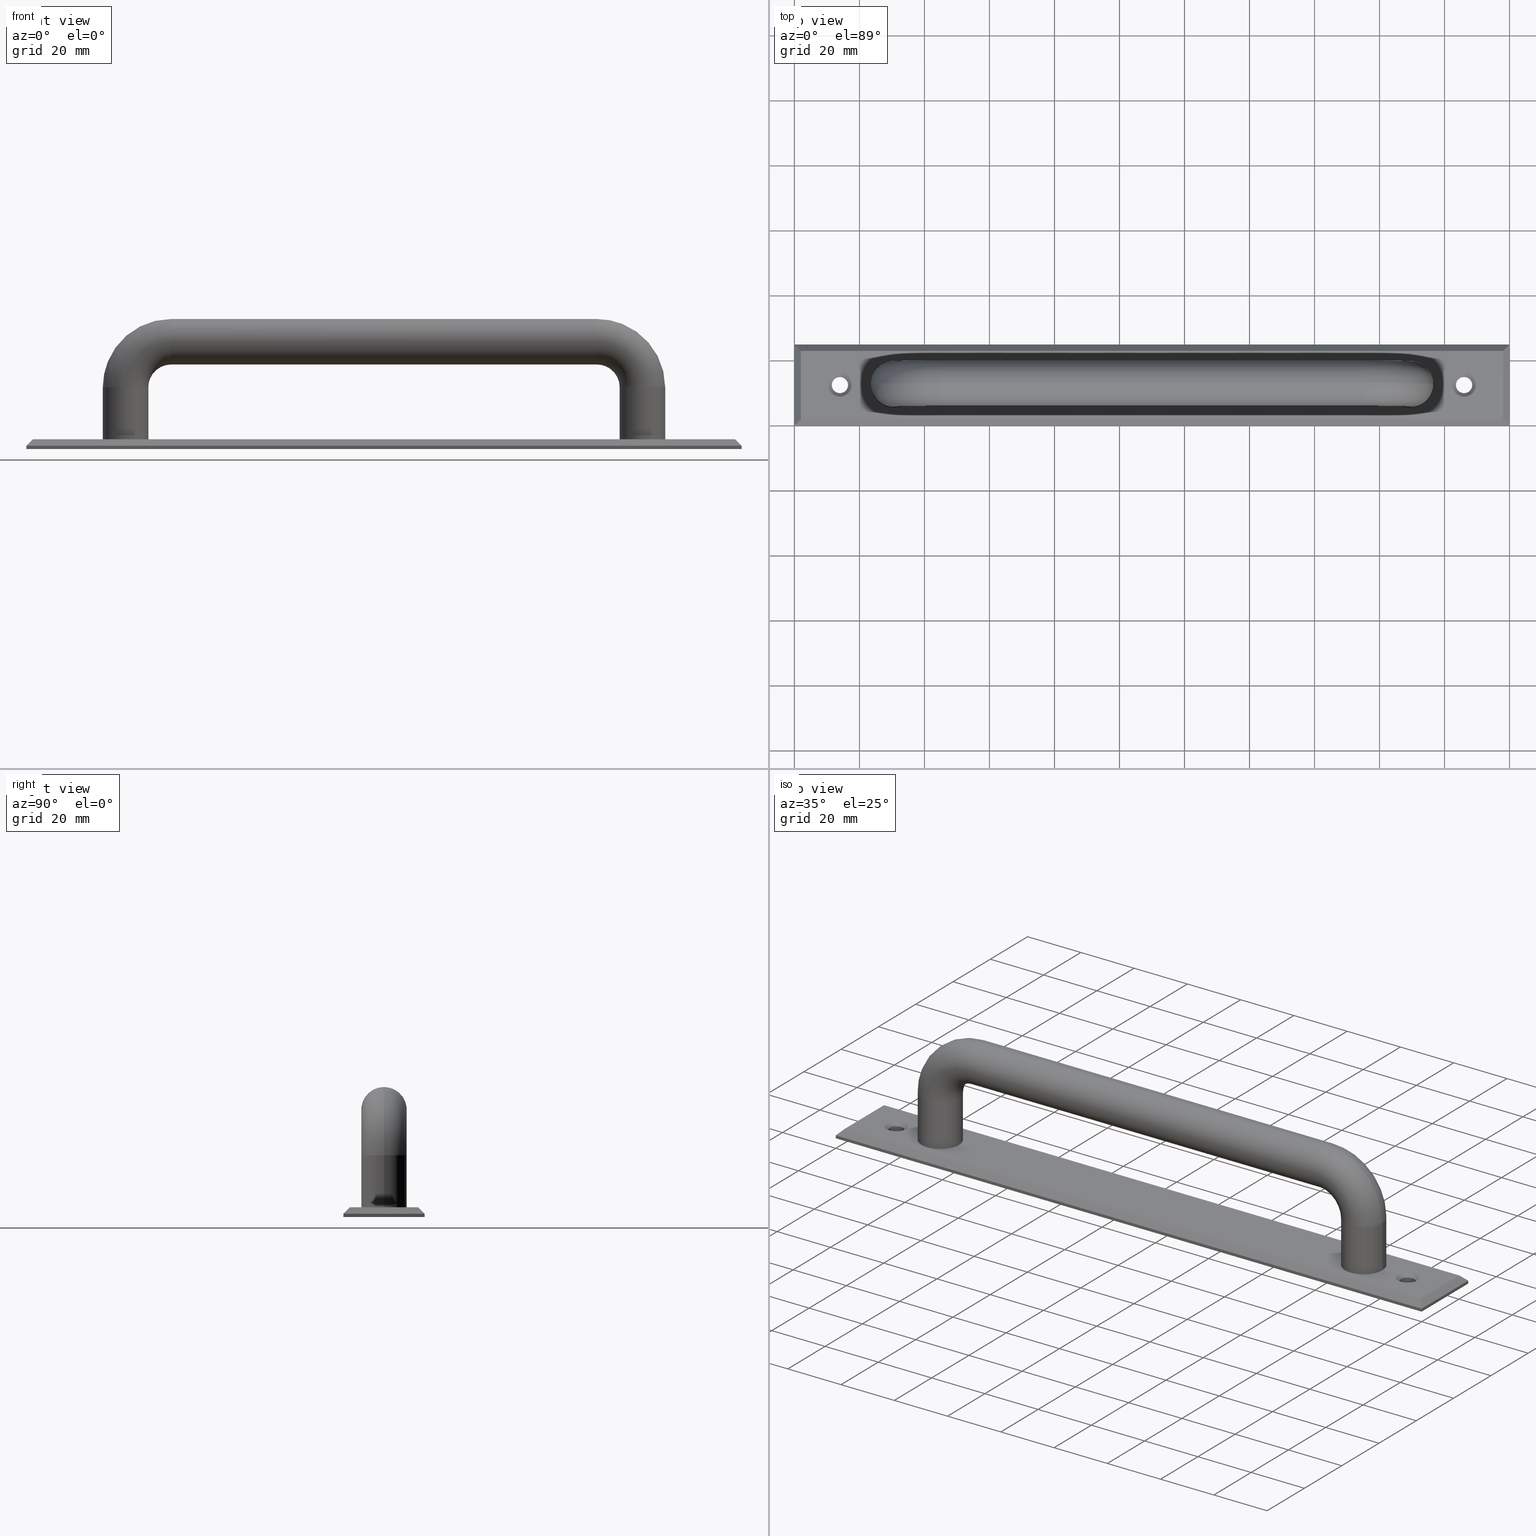
[diagram: canonical four-view strip — front | top / right | iso, engineering-drawing reading convention]
A machine part, canonical four-view strip (front | top / right | iso — engineering-drawing reading convention). The complete STEP part file that produces these views, byte-faithful:
ISO-10303-21;
HEADER;
/* Generated by software containing ST-Developer
 * from STEP Tools, Inc. (www.steptools.com) 
 */

FILE_DESCRIPTION(
/* description */ (''),
/* implementation_level */ '2;1');

FILE_NAME(
/* name */ '\\\\SYNOLOGYNAS\\web\\db2\\A-AL1-3\\\X2\B3C4BA74\X0\\\DR_A
-AL1-3.stp',
/* time_stamp */ '2024-07-03T17:14:41+09:00',
/* author */ ('user'),
/* organization */ (''),
/* preprocessor_version */ 'ST-DEVELOPER v15.6',
/* originating_system */ 'Autodesk Inventor 2015',
/* authorisation */ '');

FILE_SCHEMA (('AUTOMOTIVE_DESIGN { 1 0 10303 214 3 1 1 }'));
ENDSEC;

DATA;
#10=MECHANICAL_DESIGN_GEOMETRIC_PRESENTATION_REPRESENTATION('',(#13),#489);
#11=SHAPE_REPRESENTATION_RELATIONSHIP('SRR','None',#498,#12);
#12=ADVANCED_BREP_SHAPE_REPRESENTATION($,(#14),#488);
#13=STYLED_ITEM('',(#507),#14);
#14=MANIFOLD_SOLID_BREP('\X2\C194B9ACB4DC\X0\1',#293);
#15=CONICAL_SURFACE('',#315,3.05,45.);
#16=CONICAL_SURFACE('',#319,3.05,45.);
#17=LINE('',#431,#37);
#18=LINE('',#433,#38);
#19=LINE('',#435,#39);
#20=LINE('',#436,#40);
#21=LINE('',#439,#41);
#22=LINE('',#441,#42);
#23=LINE('',#442,#43);
#24=LINE('',#449,#44);
#25=LINE('',#450,#45);
#26=LINE('',#453,#46);
#27=LINE('',#454,#47);
#28=LINE('',#457,#48);
#29=LINE('',#459,#49);
#30=LINE('',#460,#50);
#31=LINE('',#463,#51);
#32=LINE('',#465,#52);
#33=LINE('',#466,#53);
#34=LINE('',#468,#54);
#35=LINE('',#482,#55);
#36=LINE('',#484,#56);
#37=VECTOR('',#352,3.46410161513776);
#38=VECTOR('',#353,21.);
#39=VECTOR('',#354,3.46410161513774);
#40=VECTOR('',#355,25.);
#41=VECTOR('',#358,216.);
#42=VECTOR('',#359,21.);
#43=VECTOR('',#360,216.);
#44=VECTOR('',#367,220.);
#45=VECTOR('',#368,3.46410161513775);
#46=VECTOR('',#371,3.46410161513775);
#47=VECTOR('',#372,25.);
#48=VECTOR('',#375,1.);
#49=VECTOR('',#376,25.);
#50=VECTOR('',#377,1.);
#51=VECTOR('',#380,1.);
#52=VECTOR('',#381,25.);
#53=VECTOR('',#382,1.);
#54=VECTOR('',#385,220.);
#55=VECTOR('',#404,220.);
#56=VECTOR('',#407,220.);
#57=PLANE('',#306);
#58=PLANE('',#307);
#59=PLANE('',#310);
#60=PLANE('',#311);
#61=PLANE('',#312);
#62=PLANE('',#313);
#63=PLANE('',#314);
#64=PLANE('',#323);
#65=PLANE('',#324);
#66=PLANE('',#325);
#67=TOROIDAL_SURFACE('',#301,14.,7.);
#68=TOROIDAL_SURFACE('',#305,14.,7.);
#69=FACE_BOUND('',#104,.T.);
#70=FACE_BOUND('',#106,.T.);
#71=FACE_BOUND('',#108,.T.);
#72=FACE_BOUND('',#110,.T.);
#73=FACE_BOUND('',#112,.T.);
#74=FACE_BOUND('',#115,.T.);
#75=FACE_BOUND('',#116,.T.);
#76=FACE_BOUND('',#117,.T.);
#77=FACE_BOUND('',#118,.T.);
#78=FACE_BOUND('',#125,.T.);
#79=FACE_BOUND('',#127,.T.);
#80=FACE_BOUND('',#129,.T.);
#81=FACE_BOUND('',#131,.T.);
#82=FACE_BOUND('',#135,.T.);
#83=FACE_BOUND('',#136,.T.);
#84=FACE_OUTER_BOUND('',#103,.T.);
#85=FACE_OUTER_BOUND('',#105,.T.);
#86=FACE_OUTER_BOUND('',#107,.T.);
#87=FACE_OUTER_BOUND('',#109,.T.);
#88=FACE_OUTER_BOUND('',#111,.T.);
#89=FACE_OUTER_BOUND('',#113,.T.);
#90=FACE_OUTER_BOUND('',#114,.T.);
#91=FACE_OUTER_BOUND('',#119,.T.);
#92=FACE_OUTER_BOUND('',#120,.T.);
#93=FACE_OUTER_BOUND('',#121,.T.);
#94=FACE_OUTER_BOUND('',#122,.T.);
#95=FACE_OUTER_BOUND('',#123,.T.);
#96=FACE_OUTER_BOUND('',#124,.T.);
#97=FACE_OUTER_BOUND('',#126,.T.);
#98=FACE_OUTER_BOUND('',#128,.T.);
#99=FACE_OUTER_BOUND('',#130,.T.);
#100=FACE_OUTER_BOUND('',#132,.T.);
#101=FACE_OUTER_BOUND('',#133,.T.);
#102=FACE_OUTER_BOUND('',#134,.T.);
#103=EDGE_LOOP('',(#205));
#104=EDGE_LOOP('',(#206));
#105=EDGE_LOOP('',(#207));
#106=EDGE_LOOP('',(#208));
#107=EDGE_LOOP('',(#209));
#108=EDGE_LOOP('',(#210));
#109=EDGE_LOOP('',(#211));
#110=EDGE_LOOP('',(#212));
#111=EDGE_LOOP('',(#213));
#112=EDGE_LOOP('',(#214));
#113=EDGE_LOOP('',(#215,#216,#217,#218));
#114=EDGE_LOOP('',(#219,#220,#221,#222));
#115=EDGE_LOOP('',(#223));
#116=EDGE_LOOP('',(#224));
#117=EDGE_LOOP('',(#225));
#118=EDGE_LOOP('',(#226));
#119=EDGE_LOOP('',(#227,#228,#229,#230));
#120=EDGE_LOOP('',(#231,#232,#233,#234));
#121=EDGE_LOOP('',(#235,#236,#237,#238));
#122=EDGE_LOOP('',(#239,#240,#241,#242));
#123=EDGE_LOOP('',(#243,#244,#245,#246));
#124=EDGE_LOOP('',(#247));
#125=EDGE_LOOP('',(#248));
#126=EDGE_LOOP('',(#249));
#127=EDGE_LOOP('',(#250));
#128=EDGE_LOOP('',(#251));
#129=EDGE_LOOP('',(#252));
#130=EDGE_LOOP('',(#253));
#131=EDGE_LOOP('',(#254));
#132=EDGE_LOOP('',(#255,#256,#257,#258));
#133=EDGE_LOOP('',(#259,#260,#261,#262));
#134=EDGE_LOOP('',(#263,#264,#265,#266));
#135=EDGE_LOOP('',(#267));
#136=EDGE_LOOP('',(#268));
#137=CIRCLE('',#296,7.);
#138=CIRCLE('',#297,7.);
#139=CIRCLE('',#299,7.);
#140=CIRCLE('',#300,7.);
#141=CIRCLE('',#302,7.);
#142=CIRCLE('',#304,7.);
#143=CIRCLE('',#308,3.6);
#144=CIRCLE('',#309,3.6);
#145=CIRCLE('',#316,2.5);
#146=CIRCLE('',#318,2.5);
#147=CIRCLE('',#320,2.5);
#148=CIRCLE('',#322,2.5);
#149=VERTEX_POINT('',#412);
#150=VERTEX_POINT('',#414);
#151=VERTEX_POINT('',#417);
#152=VERTEX_POINT('',#419);
#153=VERTEX_POINT('',#422);
#154=VERTEX_POINT('',#425);
#155=VERTEX_POINT('',#429);
#156=VERTEX_POINT('',#430);
#157=VERTEX_POINT('',#432);
#158=VERTEX_POINT('',#434);
#159=VERTEX_POINT('',#438);
#160=VERTEX_POINT('',#440);
#161=VERTEX_POINT('',#443);
#162=VERTEX_POINT('',#445);
#163=VERTEX_POINT('',#448);
#164=VERTEX_POINT('',#452);
#165=VERTEX_POINT('',#456);
#166=VERTEX_POINT('',#458);
#167=VERTEX_POINT('',#462);
#168=VERTEX_POINT('',#464);
#169=VERTEX_POINT('',#470);
#170=VERTEX_POINT('',#473);
#171=VERTEX_POINT('',#476);
#172=VERTEX_POINT('',#479);
#173=EDGE_CURVE('',#149,#149,#137,.T.);
#174=EDGE_CURVE('',#150,#150,#138,.T.);
#175=EDGE_CURVE('',#151,#151,#139,.T.);
#176=EDGE_CURVE('',#152,#152,#140,.T.);
#177=EDGE_CURVE('',#153,#153,#141,.T.);
#178=EDGE_CURVE('',#154,#154,#142,.T.);
#179=EDGE_CURVE('',#155,#156,#17,.T.);
#180=EDGE_CURVE('',#156,#157,#18,.T.);
#181=EDGE_CURVE('',#157,#158,#19,.T.);
#182=EDGE_CURVE('',#158,#155,#20,.T.);
#183=EDGE_CURVE('',#159,#156,#21,.T.);
#184=EDGE_CURVE('',#160,#159,#22,.T.);
#185=EDGE_CURVE('',#157,#160,#23,.T.);
#186=EDGE_CURVE('',#161,#161,#143,.T.);
#187=EDGE_CURVE('',#162,#162,#144,.T.);
#188=EDGE_CURVE('',#155,#163,#24,.T.);
#189=EDGE_CURVE('',#159,#163,#25,.T.);
#190=EDGE_CURVE('',#164,#160,#26,.T.);
#191=EDGE_CURVE('',#163,#164,#27,.T.);
#192=EDGE_CURVE('',#165,#163,#28,.T.);
#193=EDGE_CURVE('',#165,#166,#29,.T.);
#194=EDGE_CURVE('',#166,#164,#30,.T.);
#195=EDGE_CURVE('',#167,#158,#31,.T.);
#196=EDGE_CURVE('',#167,#168,#32,.T.);
#197=EDGE_CURVE('',#168,#155,#33,.T.);
#198=EDGE_CURVE('',#164,#158,#34,.T.);
#199=EDGE_CURVE('',#169,#169,#145,.T.);
#200=EDGE_CURVE('',#170,#170,#146,.T.);
#201=EDGE_CURVE('',#171,#171,#147,.T.);
#202=EDGE_CURVE('',#172,#172,#148,.T.);
#203=EDGE_CURVE('',#166,#167,#35,.T.);
#204=EDGE_CURVE('',#168,#165,#36,.T.);
#205=ORIENTED_EDGE('',*,*,#173,.F.);
#206=ORIENTED_EDGE('',*,*,#174,.F.);
#207=ORIENTED_EDGE('',*,*,#175,.T.);
#208=ORIENTED_EDGE('',*,*,#176,.F.);
#209=ORIENTED_EDGE('',*,*,#173,.T.);
#210=ORIENTED_EDGE('',*,*,#177,.F.);
#211=ORIENTED_EDGE('',*,*,#177,.T.);
#212=ORIENTED_EDGE('',*,*,#178,.F.);
#213=ORIENTED_EDGE('',*,*,#178,.T.);
#214=ORIENTED_EDGE('',*,*,#175,.F.);
#215=ORIENTED_EDGE('',*,*,#179,.T.);
#216=ORIENTED_EDGE('',*,*,#180,.T.);
#217=ORIENTED_EDGE('',*,*,#181,.T.);
#218=ORIENTED_EDGE('',*,*,#182,.T.);
#219=ORIENTED_EDGE('',*,*,#180,.F.);
#220=ORIENTED_EDGE('',*,*,#183,.F.);
#221=ORIENTED_EDGE('',*,*,#184,.F.);
#222=ORIENTED_EDGE('',*,*,#185,.F.);
#223=ORIENTED_EDGE('',*,*,#174,.T.);
#224=ORIENTED_EDGE('',*,*,#176,.T.);
#225=ORIENTED_EDGE('',*,*,#186,.T.);
#226=ORIENTED_EDGE('',*,*,#187,.T.);
#227=ORIENTED_EDGE('',*,*,#179,.F.);
#228=ORIENTED_EDGE('',*,*,#188,.T.);
#229=ORIENTED_EDGE('',*,*,#189,.F.);
#230=ORIENTED_EDGE('',*,*,#183,.T.);
#231=ORIENTED_EDGE('',*,*,#190,.T.);
#232=ORIENTED_EDGE('',*,*,#184,.T.);
#233=ORIENTED_EDGE('',*,*,#189,.T.);
#234=ORIENTED_EDGE('',*,*,#191,.T.);
#235=ORIENTED_EDGE('',*,*,#191,.F.);
#236=ORIENTED_EDGE('',*,*,#192,.F.);
#237=ORIENTED_EDGE('',*,*,#193,.T.);
#238=ORIENTED_EDGE('',*,*,#194,.T.);
#239=ORIENTED_EDGE('',*,*,#182,.F.);
#240=ORIENTED_EDGE('',*,*,#195,.F.);
#241=ORIENTED_EDGE('',*,*,#196,.T.);
#242=ORIENTED_EDGE('',*,*,#197,.T.);
#243=ORIENTED_EDGE('',*,*,#181,.F.);
#244=ORIENTED_EDGE('',*,*,#185,.T.);
#245=ORIENTED_EDGE('',*,*,#190,.F.);
#246=ORIENTED_EDGE('',*,*,#198,.T.);
#247=ORIENTED_EDGE('',*,*,#187,.F.);
#248=ORIENTED_EDGE('',*,*,#199,.F.);
#249=ORIENTED_EDGE('',*,*,#200,.F.);
#250=ORIENTED_EDGE('',*,*,#199,.T.);
#251=ORIENTED_EDGE('',*,*,#186,.F.);
#252=ORIENTED_EDGE('',*,*,#201,.F.);
#253=ORIENTED_EDGE('',*,*,#202,.F.);
#254=ORIENTED_EDGE('',*,*,#201,.T.);
#255=ORIENTED_EDGE('',*,*,#198,.F.);
#256=ORIENTED_EDGE('',*,*,#194,.F.);
#257=ORIENTED_EDGE('',*,*,#203,.T.);
#258=ORIENTED_EDGE('',*,*,#195,.T.);
#259=ORIENTED_EDGE('',*,*,#188,.F.);
#260=ORIENTED_EDGE('',*,*,#197,.F.);
#261=ORIENTED_EDGE('',*,*,#204,.T.);
#262=ORIENTED_EDGE('',*,*,#192,.T.);
#263=ORIENTED_EDGE('',*,*,#204,.F.);
#264=ORIENTED_EDGE('',*,*,#196,.F.);
#265=ORIENTED_EDGE('',*,*,#203,.F.);
#266=ORIENTED_EDGE('',*,*,#193,.F.);
#267=ORIENTED_EDGE('',*,*,#200,.T.);
#268=ORIENTED_EDGE('',*,*,#202,.T.);
#269=CYLINDRICAL_SURFACE('',#295,7.);
#270=CYLINDRICAL_SURFACE('',#298,7.);
#271=CYLINDRICAL_SURFACE('',#303,7.);
#272=CYLINDRICAL_SURFACE('',#317,2.5);
#273=CYLINDRICAL_SURFACE('',#321,2.5);
#274=ADVANCED_FACE('',(#84,#69),#269,.T.);
#275=ADVANCED_FACE('',(#85,#70),#270,.T.);
#276=ADVANCED_FACE('',(#86,#71),#67,.T.);
#277=ADVANCED_FACE('',(#87,#72),#271,.T.);
#278=ADVANCED_FACE('',(#88,#73),#68,.T.);
#279=ADVANCED_FACE('',(#89),#57,.T.);
#280=ADVANCED_FACE('',(#90,#74,#75,#76,#77),#58,.T.);
#281=ADVANCED_FACE('',(#91),#59,.T.);
#282=ADVANCED_FACE('',(#92),#60,.T.);
#283=ADVANCED_FACE('',(#93),#61,.T.);
#284=ADVANCED_FACE('',(#94),#62,.T.);
#285=ADVANCED_FACE('',(#95),#63,.T.);
#286=ADVANCED_FACE('',(#96,#78),#15,.F.);
#287=ADVANCED_FACE('',(#97,#79),#272,.F.);
#288=ADVANCED_FACE('',(#98,#80),#16,.F.);
#289=ADVANCED_FACE('',(#99,#81),#273,.F.);
#290=ADVANCED_FACE('',(#100),#64,.T.);
#291=ADVANCED_FACE('',(#101),#65,.T.);
#292=ADVANCED_FACE('',(#102,#82,#83),#66,.F.);
#293=CLOSED_SHELL('',(#274,#275,#276,#277,#278,#279,#280,#281,#282,#283,
#284,#285,#286,#287,#288,#289,#290,#291,#292));
#294=AXIS2_PLACEMENT_3D('placement',#410,#326,#327);
#295=AXIS2_PLACEMENT_3D('',#411,#328,#329);
#296=AXIS2_PLACEMENT_3D('',#413,#330,#331);
#297=AXIS2_PLACEMENT_3D('',#415,#332,#333);
#298=AXIS2_PLACEMENT_3D('',#416,#334,#335);
#299=AXIS2_PLACEMENT_3D('',#418,#336,#337);
#300=AXIS2_PLACEMENT_3D('',#420,#338,#339);
#301=AXIS2_PLACEMENT_3D('',#421,#340,#341);
#302=AXIS2_PLACEMENT_3D('',#423,#342,#343);
#303=AXIS2_PLACEMENT_3D('',#424,#344,#345);
#304=AXIS2_PLACEMENT_3D('',#426,#346,#347);
#305=AXIS2_PLACEMENT_3D('',#427,#348,#349);
#306=AXIS2_PLACEMENT_3D('',#428,#350,#351);
#307=AXIS2_PLACEMENT_3D('',#437,#356,#357);
#308=AXIS2_PLACEMENT_3D('',#444,#361,#362);
#309=AXIS2_PLACEMENT_3D('',#446,#363,#364);
#310=AXIS2_PLACEMENT_3D('',#447,#365,#366);
#311=AXIS2_PLACEMENT_3D('',#451,#369,#370);
#312=AXIS2_PLACEMENT_3D('',#455,#373,#374);
#313=AXIS2_PLACEMENT_3D('',#461,#378,#379);
#314=AXIS2_PLACEMENT_3D('',#467,#383,#384);
#315=AXIS2_PLACEMENT_3D('',#469,#386,#387);
#316=AXIS2_PLACEMENT_3D('',#471,#388,#389);
#317=AXIS2_PLACEMENT_3D('',#472,#390,#391);
#318=AXIS2_PLACEMENT_3D('',#474,#392,#393);
#319=AXIS2_PLACEMENT_3D('',#475,#394,#395);
#320=AXIS2_PLACEMENT_3D('',#477,#396,#397);
#321=AXIS2_PLACEMENT_3D('',#478,#398,#399);
#322=AXIS2_PLACEMENT_3D('',#480,#400,#401);
#323=AXIS2_PLACEMENT_3D('',#481,#402,#403);
#324=AXIS2_PLACEMENT_3D('',#483,#405,#406);
#325=AXIS2_PLACEMENT_3D('',#485,#408,#409);
#326=DIRECTION('axis',(0.,0.,1.));
#327=DIRECTION('refdir',(1.,0.,0.));
#328=DIRECTION('center_axis',(-9.34924652315918E-16,0.,-1.));
#329=DIRECTION('ref_axis',(1.,0.,-9.34924652315918E-16));
#330=DIRECTION('center_axis',(6.34413156928661E-16,0.,1.));
#331=DIRECTION('ref_axis',(1.,0.,-6.34413156928661E-16));
#332=DIRECTION('center_axis',(0.,0.,-1.));
#333=DIRECTION('ref_axis',(1.,0.,-9.34924652315918E-16));
#334=DIRECTION('center_axis',(0.,0.,1.));
#335=DIRECTION('ref_axis',(-1.,0.,0.));
#336=DIRECTION('center_axis',(0.,0.,-1.));
#337=DIRECTION('ref_axis',(-1.,0.,0.));
#338=DIRECTION('center_axis',(0.,0.,-1.));
#339=DIRECTION('ref_axis',(-1.,0.,0.));
#340=DIRECTION('center_axis',(0.,-1.,0.));
#341=DIRECTION('ref_axis',(0.,0.,-1.));
#342=DIRECTION('center_axis',(1.,0.,3.17206578464331E-16));
#343=DIRECTION('ref_axis',(3.17206578464331E-16,0.,-1.));
#344=DIRECTION('center_axis',(-1.,0.,3.7289933651532E-16));
#345=DIRECTION('ref_axis',(-3.7289933651532E-16,0.,-1.));
#346=DIRECTION('center_axis',(1.,0.,3.17206578464331E-16));
#347=DIRECTION('ref_axis',(3.17206578464331E-16,0.,-1.));
#348=DIRECTION('center_axis',(0.,-1.,0.));
#349=DIRECTION('ref_axis',(0.,0.,-1.));
#350=DIRECTION('center_axis',(-0.707106781186547,0.,0.707106781186548));
#351=DIRECTION('ref_axis',(0.707106781186548,0.,0.707106781186547));
#352=DIRECTION('',(0.577350269189626,0.577350269189625,0.577350269189626));
#353=DIRECTION('',(0.,1.,0.));
#354=DIRECTION('',(-0.577350269189626,0.577350269189626,-0.577350269189625));
#355=DIRECTION('',(0.,-1.,0.));
#356=DIRECTION('center_axis',(0.,0.,1.));
#357=DIRECTION('ref_axis',(1.,0.,0.));
#358=DIRECTION('',(-1.,-1.79286569368412E-32,0.));
#359=DIRECTION('',(0.,-1.,0.));
#360=DIRECTION('',(1.,0.,0.));
#361=DIRECTION('center_axis',(0.,0.,-1.));
#362=DIRECTION('ref_axis',(1.,0.,0.));
#363=DIRECTION('center_axis',(0.,0.,-1.));
#364=DIRECTION('ref_axis',(1.,0.,0.));
#365=DIRECTION('center_axis',(1.26774748976076E-32,-0.707106781186548,0.707106781186547));
#366=DIRECTION('ref_axis',(1.,0.,0.));
#367=DIRECTION('',(1.,1.79286569368412E-32,0.));
#368=DIRECTION('',(0.577350269189625,-0.577350269189626,-0.577350269189626));
#369=DIRECTION('center_axis',(0.707106781186549,0.,0.707106781186546));
#370=DIRECTION('ref_axis',(0.707106781186547,0.,-0.707106781186548));
#371=DIRECTION('',(-0.577350269189624,-0.577350269189627,0.577350269189626));
#372=DIRECTION('',(0.,1.,0.));
#373=DIRECTION('center_axis',(1.,0.,0.));
#374=DIRECTION('ref_axis',(0.,1.,0.));
#375=DIRECTION('',(0.,0.,1.));
#376=DIRECTION('',(0.,1.,0.));
#377=DIRECTION('',(0.,0.,1.));
#378=DIRECTION('center_axis',(-1.,0.,0.));
#379=DIRECTION('ref_axis',(0.,-1.,0.));
#380=DIRECTION('',(0.,0.,1.));
#381=DIRECTION('',(0.,-1.,0.));
#382=DIRECTION('',(0.,0.,1.));
#383=DIRECTION('center_axis',(0.,0.707106781186547,0.707106781186548));
#384=DIRECTION('ref_axis',(1.,0.,0.));
#385=DIRECTION('',(-1.,0.,0.));
#386=DIRECTION('center_axis',(0.,0.,1.));
#387=DIRECTION('ref_axis',(1.,0.,0.));
#388=DIRECTION('center_axis',(0.,0.,1.));
#389=DIRECTION('ref_axis',(1.,0.,0.));
#390=DIRECTION('center_axis',(0.,0.,1.));
#391=DIRECTION('ref_axis',(1.,0.,0.));
#392=DIRECTION('center_axis',(0.,0.,1.));
#393=DIRECTION('ref_axis',(1.,0.,0.));
#394=DIRECTION('center_axis',(0.,0.,1.));
#395=DIRECTION('ref_axis',(1.,0.,0.));
#396=DIRECTION('center_axis',(0.,0.,1.));
#397=DIRECTION('ref_axis',(1.,0.,0.));
#398=DIRECTION('center_axis',(0.,0.,1.));
#399=DIRECTION('ref_axis',(1.,0.,0.));
#400=DIRECTION('center_axis',(0.,0.,1.));
#401=DIRECTION('ref_axis',(1.,0.,0.));
#402=DIRECTION('center_axis',(0.,1.,0.));
#403=DIRECTION('ref_axis',(-1.,0.,0.));
#404=DIRECTION('',(-1.,0.,0.));
#405=DIRECTION('center_axis',(1.79286569368412E-32,-1.,0.));
#406=DIRECTION('ref_axis',(1.,1.79286569368412E-32,0.));
#407=DIRECTION('',(1.,1.79286569368412E-32,0.));
#408=DIRECTION('center_axis',(0.,0.,1.));
#409=DIRECTION('ref_axis',(1.,0.,0.));
#410=CARTESIAN_POINT('',(0.,0.,0.));
#411=CARTESIAN_POINT('Origin',(30.5,12.5,19.0000000000001));
#412=CARTESIAN_POINT('',(23.5,12.5,19.0000000000001));
#413=CARTESIAN_POINT('Origin',(30.5,12.5,19.0000000000001));
#414=CARTESIAN_POINT('',(23.5,12.5,3.00000000000008));
#415=CARTESIAN_POINT('Origin',(30.5,12.5,3.00000000000007));
#416=CARTESIAN_POINT('Origin',(189.5,12.5,0.));
#417=CARTESIAN_POINT('',(196.5,12.5,19.));
#418=CARTESIAN_POINT('Origin',(189.5,12.5,19.));
#419=CARTESIAN_POINT('',(196.5,12.5,3.));
#420=CARTESIAN_POINT('Origin',(189.5,12.5,3.));
#421=CARTESIAN_POINT('Origin',(44.5,12.5,19.0000000000001));
#422=CARTESIAN_POINT('',(44.5,12.5,40.));
#423=CARTESIAN_POINT('Origin',(44.5,12.5,33.0000000000001));
#424=CARTESIAN_POINT('Origin',(175.5,12.5,33.));
#425=CARTESIAN_POINT('',(175.5,12.5,40.));
#426=CARTESIAN_POINT('Origin',(175.5,12.5,33.));
#427=CARTESIAN_POINT('Origin',(175.5,12.5,19.));
#428=CARTESIAN_POINT('Origin',(1.,18.75,2.));
#429=CARTESIAN_POINT('',(0.,0.,1.));
#430=CARTESIAN_POINT('',(2.,2.,3.));
#431=CARTESIAN_POINT('',(12.9583333333334,12.9583333333333,13.9583333333333));
#432=CARTESIAN_POINT('',(1.99999999999999,23.,3.));
#433=CARTESIAN_POINT('',(2.,18.75,3.));
#434=CARTESIAN_POINT('',(0.,25.,1.));
#435=CARTESIAN_POINT('',(29.2083333333333,-4.20833333333335,30.2083333333333));
#436=CARTESIAN_POINT('',(0.,18.75,1.));
#437=CARTESIAN_POINT('Origin',(110.,12.5,3.));
#438=CARTESIAN_POINT('',(218.,2.,3.));
#439=CARTESIAN_POINT('',(55.,2.,3.));
#440=CARTESIAN_POINT('',(218.,23.,3.));
#441=CARTESIAN_POINT('',(218.,6.25,3.));
#442=CARTESIAN_POINT('',(165.,23.,3.));
#443=CARTESIAN_POINT('',(209.6,12.5,3.));
#444=CARTESIAN_POINT('Origin',(206.,12.5,3.));
#445=CARTESIAN_POINT('',(17.6,12.5,3.));
#446=CARTESIAN_POINT('Origin',(14.,12.5,3.));
#447=CARTESIAN_POINT('Origin',(55.,1.,2.));
#448=CARTESIAN_POINT('',(220.,3.94430452610506E-30,1.));
#449=CARTESIAN_POINT('',(55.,0.,1.));
#450=CARTESIAN_POINT('',(190.791666666667,29.2083333333333,30.2083333333333));
#451=CARTESIAN_POINT('Origin',(219.,6.25,2.));
#452=CARTESIAN_POINT('',(220.,25.,1.));
#453=CARTESIAN_POINT('',(207.041666666667,12.0416666666667,13.9583333333333));
#454=CARTESIAN_POINT('',(220.,6.25,1.));
#455=CARTESIAN_POINT('Origin',(220.,3.94430452610506E-30,0.));
#456=CARTESIAN_POINT('',(220.,3.94430452610506E-30,0.));
#457=CARTESIAN_POINT('',(220.,3.94430452610506E-30,0.));
#458=CARTESIAN_POINT('',(220.,25.,0.));
#459=CARTESIAN_POINT('',(220.,3.94430452610506E-30,0.));
#460=CARTESIAN_POINT('',(220.,25.,0.));
#461=CARTESIAN_POINT('Origin',(0.,25.,0.));
#462=CARTESIAN_POINT('',(0.,25.,0.));
#463=CARTESIAN_POINT('',(0.,25.,0.));
#464=CARTESIAN_POINT('',(0.,0.,0.));
#465=CARTESIAN_POINT('',(0.,25.,0.));
#466=CARTESIAN_POINT('',(0.,0.,0.));
#467=CARTESIAN_POINT('Origin',(165.,24.,2.));
#468=CARTESIAN_POINT('',(165.,25.,1.));
#469=CARTESIAN_POINT('Origin',(14.,12.5,2.45));
#470=CARTESIAN_POINT('',(16.5,12.5,1.9));
#471=CARTESIAN_POINT('Origin',(14.,12.5,1.90000000000001));
#472=CARTESIAN_POINT('Origin',(14.,12.5,-218.436221066022));
#473=CARTESIAN_POINT('',(11.5,12.5,0.));
#474=CARTESIAN_POINT('Origin',(14.,12.5,0.));
#475=CARTESIAN_POINT('Origin',(206.,12.5,2.45));
#476=CARTESIAN_POINT('',(208.5,12.5,1.9));
#477=CARTESIAN_POINT('Origin',(206.,12.5,1.90000000000001));
#478=CARTESIAN_POINT('Origin',(206.,12.5,-218.436221066022));
#479=CARTESIAN_POINT('',(203.5,12.5,0.));
#480=CARTESIAN_POINT('Origin',(206.,12.5,0.));
#481=CARTESIAN_POINT('Origin',(220.,25.,0.));
#482=CARTESIAN_POINT('',(220.,25.,0.));
#483=CARTESIAN_POINT('Origin',(0.,0.,0.));
#484=CARTESIAN_POINT('',(0.,0.,0.));
#485=CARTESIAN_POINT('Origin',(110.,12.5,0.));
#486=UNCERTAINTY_MEASURE_WITH_UNIT(LENGTH_MEASURE(0.01),#490,
'DISTANCE_ACCURACY_VALUE',
'Maximum model space distance between geometric entities at asserted c
onnectivities');
#487=UNCERTAINTY_MEASURE_WITH_UNIT(LENGTH_MEASURE(1.E-6),#490,
'DISTANCE_ACCURACY_VALUE',
'Maximum model space distance between geometric entities at asserted c
onnectivities');
#488=(
GEOMETRIC_REPRESENTATION_CONTEXT(3)
GLOBAL_UNCERTAINTY_ASSIGNED_CONTEXT((#486))
GLOBAL_UNIT_ASSIGNED_CONTEXT((#490,#493,#491))
REPRESENTATION_CONTEXT('','3D')
);
#489=(
GEOMETRIC_REPRESENTATION_CONTEXT(3)
GLOBAL_UNCERTAINTY_ASSIGNED_CONTEXT((#487))
GLOBAL_UNIT_ASSIGNED_CONTEXT((#490,#493,#491))
REPRESENTATION_CONTEXT('','3D')
);
#490=(
LENGTH_UNIT()
NAMED_UNIT(*)
SI_UNIT(.MILLI.,.METRE.)
);
#491=(
NAMED_UNIT(*)
SI_UNIT($,.STERADIAN.)
SOLID_ANGLE_UNIT()
);
#492=DIMENSIONAL_EXPONENTS(0.,0.,0.,0.,0.,0.,0.);
#493=(
CONVERSION_BASED_UNIT('degree',#495)
NAMED_UNIT(#492)
PLANE_ANGLE_UNIT()
);
#494=(
NAMED_UNIT(*)
PLANE_ANGLE_UNIT()
SI_UNIT($,.RADIAN.)
);
#495=PLANE_ANGLE_MEASURE_WITH_UNIT(PLANE_ANGLE_MEASURE(0.01745329252),#494);
#496=SHAPE_DEFINITION_REPRESENTATION(#497,#498);
#497=PRODUCT_DEFINITION_SHAPE('',$,#500);
#498=SHAPE_REPRESENTATION('',(#294),#488);
#499=PRODUCT_DEFINITION_CONTEXT('part definition',#504,'design');
#500=PRODUCT_DEFINITION('DR_A-AL1-3','DR_A-AL1-3',#501,#499);
#501=PRODUCT_DEFINITION_FORMATION('',$,#506);
#502=PRODUCT_RELATED_PRODUCT_CATEGORY('DR_A-AL1-3','DR_A-AL1-3',(#506));
#503=APPLICATION_PROTOCOL_DEFINITION('international standard',
'automotive_design',2009,#504);
#504=APPLICATION_CONTEXT(
'Core Data for Automotive Mechanical Design Process');
#505=PRODUCT_CONTEXT('part definition',#504,'mechanical');
#506=PRODUCT('DR_A-AL1-3','DR_A-AL1-3',$,(#505));
#507=PRESENTATION_STYLE_ASSIGNMENT((#508));
#508=SURFACE_STYLE_USAGE(.BOTH.,#509);
#509=SURFACE_SIDE_STYLE($,(#510));
#510=SURFACE_STYLE_FILL_AREA(#511);
#511=FILL_AREA_STYLE($,(#512));
#512=FILL_AREA_STYLE_COLOUR($,#513);
#513=COLOUR_RGB('',1.,1.,1.);
ENDSEC;
END-ISO-10303-21;
